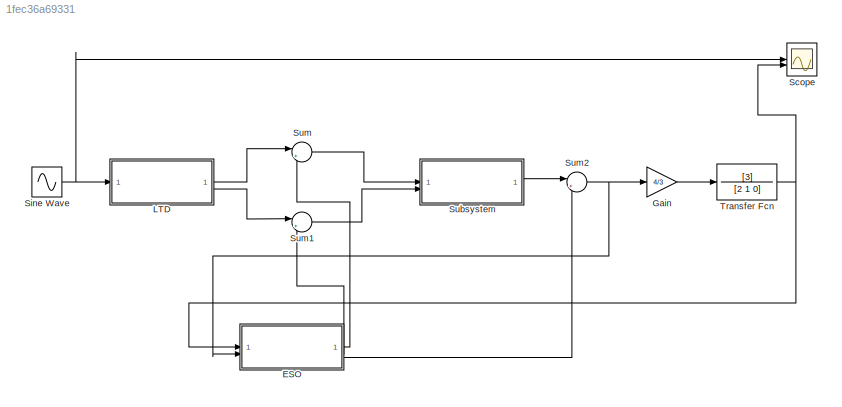
MODEL slx_1fec36a69331
KIND model
CONFIG AbsTol = auto
CONFIG EnableMultiTasking = off
CONFIG FixedStep = auto
CONFIG MaxStep = auto
CONFIG MinStep = auto
CONFIG RelTol = 1e-3
CONFIG SampleTimeConstraint = Unconstrained
CONFIG SolverName = VariableStepAuto
CONFIG StartTime = 0.0
CONFIG StopTime = 30
WORKSPACE source: mxarray member
WORKSPACE HIGH: Simulink.Parameter (value not decoded)
WORKSPACE LOW: Simulink.Parameter (value not decoded)
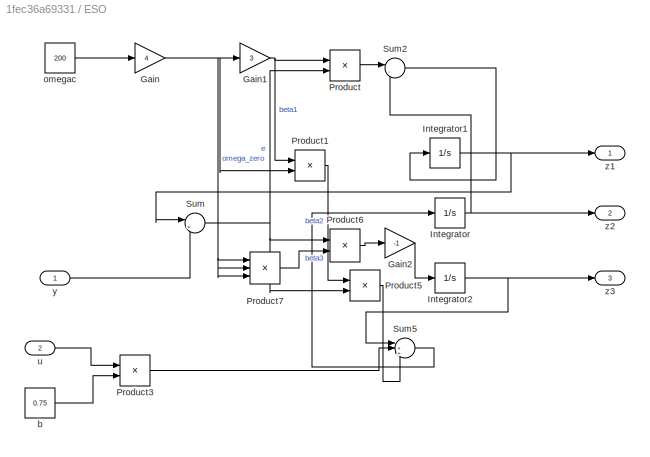
BLOCK [SubSystem] ESO
BLOCK [Gain] ESO/Gain
  Gain = 4
BLOCK [Gain] ESO/Gain1
  Gain = 3
BLOCK [Gain] ESO/Gain2
  Gain = -1
BLOCK [Integrator] ESO/Integrator
BLOCK [Integrator] ESO/Integrator1
BLOCK [Integrator] ESO/Integrator2
BLOCK [Product] ESO/Product
BLOCK [Product] ESO/Product1
BLOCK [Product] ESO/Product3
BLOCK [Product] ESO/Product5
BLOCK [Product] ESO/Product6
BLOCK [Product] ESO/Product7
  Inputs = 3
BLOCK [Sum] ESO/Sum
  Inputs = |+-
BLOCK [Sum] ESO/Sum2
  Inputs = |-+
BLOCK [Sum] ESO/Sum5
  Inputs = |++-
BLOCK [Constant] ESO/b
  Value = 0.75
BLOCK [Constant] ESO/omegac
  Value = 200
BLOCK [Inport] ESO/u
  Port = 2
BLOCK [Inport] ESO/y
BLOCK [Outport] ESO/z1
BLOCK [Outport] ESO/z2
  Port = 2
BLOCK [Outport] ESO/z3
  Port = 3
BLOCK [Gain] Gain
  Gain = 4/3
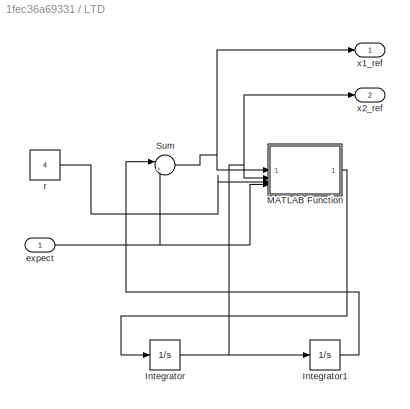
BLOCK [SubSystem] LTD
BLOCK [Integrator] LTD/Integrator
BLOCK [Integrator] LTD/Integrator1
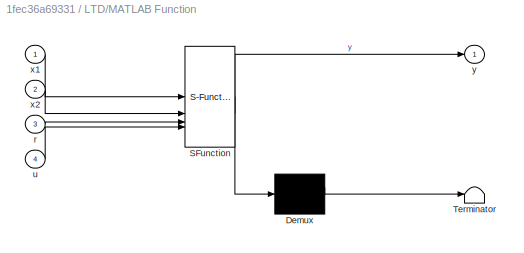
BLOCK [SubSystem] LTD/MATLAB Function
  ErrorFcn = Stateflow.Translate.translate
  LibrarySourceBlock = simulink/User-Defined\nFunctions/MATLAB Function
  PermitHierarchicalResolution = ExplicitOnly
  SFBlockType = MATLAB Function
  TreatAsAtomicUnit = on
BLOCK [Demux] LTD/MATLAB Function/ Demux 
  Outputs = 1
BLOCK [S-Function] LTD/MATLAB Function/ SFunction 
  EnableBusSupport = on
  FunctionName = sf_sfun
  PortCounts = [4 2]
  SFcnIsStateOwnerBlock = off
  SFunctionDeploymentMode = off
  Tag = Stateflow S-Function 2
BLOCK [Terminator] LTD/MATLAB Function/ Terminator 
BLOCK [Inport] LTD/MATLAB Function/r
  Port = 3
BLOCK [Inport] LTD/MATLAB Function/u
  Port = 4
BLOCK [Inport] LTD/MATLAB Function/x1
BLOCK [Inport] LTD/MATLAB Function/x2
  Port = 2
BLOCK [Outport] LTD/MATLAB Function/y
BLOCK [Sum] LTD/Sum
  Inputs = |+-
BLOCK [Inport] LTD/expect
BLOCK [Constant] LTD/r
  Value = 4
BLOCK [Outport] LTD/x1_ref
BLOCK [Outport] LTD/x2_ref
  Port = 2
BLOCK [Scope] Scope
  Floating = off
  NumInputPorts = 2
  ScopeSpecificationString = Simulink.scopes.TimeScopeBlockCfg('CurrentConfiguration', extmgr.ConfigurationSet(extmgr.Configuration('Core','General UI',true),extmgr.Configuration('Core','Source UI',true),extmgr.Configuration('Sources','WiredSimulink',true),extmgr.Configuration('Visuals','Time Domain',true,'SerializedDisplays',{struct('MinYLimReal','-1.54092','MaxYLimReal','1.53769','YLabelReal','','MinYLimMag','0.00000','MaxY...<+1425ch>
BLOCK [Sin] Sine Wave
  SampleTime = 0
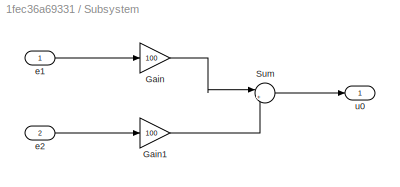
BLOCK [SubSystem] Subsystem
BLOCK [Gain] Subsystem/Gain
  Gain = 100
BLOCK [Gain] Subsystem/Gain1
  Gain = 100
BLOCK [Sum] Subsystem/Sum
  Inputs = |++
BLOCK [Inport] Subsystem/e1
BLOCK [Inport] Subsystem/e2
  Port = 2
BLOCK [Outport] Subsystem/u0
BLOCK [Sum] Sum
  Inputs = |+-
BLOCK [Sum] Sum1
  Inputs = |+-
BLOCK [Sum] Sum2
  Inputs = |+-
BLOCK [TransferFcn] Transfer Fcn
  Denominator = [2 1 0]
  Numerator = [3]
NET ESO/Gain1:1 -> ESO/Product1:1, ESO/Product:1
LINE ESO/Gain2:1 -> ESO/Integrator2:1
NET ESO/Gain:1 -> ESO/Gain1:1, ESO/Product1:2, ESO/Product7:1, ESO/Product7:2, ESO/Product7:3
NET ESO/Integrator1:1 -> ESO/Sum:1, ESO/z1:1
NET ESO/Integrator2:1 -> ESO/Sum5:1, ESO/z3:1
NET ESO/Integrator:1 -> ESO/Sum2:2, ESO/z2:1
LINE ESO/Product1:1 -> ESO/Product5:1
LINE ESO/Product3:1 -> ESO/Sum5:2
LINE ESO/Product5:1 -> ESO/Sum5:3
LINE ESO/Product6:1 -> ESO/Gain2:1
LINE ESO/Product7:1 -> ESO/Product6:2
LINE ESO/Product:1 -> ESO/Sum2:1
LINE ESO/Sum2:1 -> ESO/Integrator1:1
LINE ESO/Sum5:1 -> ESO/Integrator:1
NET ESO/Sum:1 -> ESO/Product5:2, ESO/Product6:1, ESO/Product:2
LINE ESO/b:1 -> ESO/Product3:2
LINE ESO/omegac:1 -> ESO/Gain:1
LINE ESO/u:1 -> ESO/Product3:1
LINE ESO/y:1 -> ESO/Sum:2
LINE ESO:1 -> Sum:2
LINE ESO:2 -> Sum1:2
LINE ESO:3 -> Sum2:2
LINE Gain:1 -> Transfer Fcn:1
LINE LTD/Integrator1:1 -> LTD/Sum:1
NET LTD/Integrator:1 -> LTD/Integrator1:1, LTD/MATLAB Function:2, LTD/x2_ref:1
LINE LTD/MATLAB Function:1 -> LTD/Integrator:1
NET LTD/Sum:1 -> LTD/MATLAB Function:1, LTD/x1_ref:1
NET LTD/expect:1 -> LTD/MATLAB Function:4, LTD/Sum:2
LINE LTD/r:1 -> LTD/MATLAB Function:3
LINE LTD:1 -> Sum:1
LINE LTD:2 -> Sum1:1
NET Sine Wave:1 -> LTD:1, Scope:1
LINE Subsystem/Gain1:1 -> Subsystem/Sum:2
LINE Subsystem/Gain:1 -> Subsystem/Sum:1
LINE Subsystem/Sum:1 -> Subsystem/u0:1
LINE Subsystem/e1:1 -> Subsystem/Gain:1
LINE Subsystem/e2:1 -> Subsystem/Gain1:1
LINE Subsystem:1 -> Sum2:1
LINE Sum1:1 -> Subsystem:2
NET Sum2:1 -> ESO:2, Gain:1
LINE Sum:1 -> Subsystem:1
NET Transfer Fcn:1 -> ESO:1, Scope:2
note: NET lines group one-source signal fan-out (src -> all destinations, sorted); 1:1 wires keep LINE
CHART LTD/MATLAB Function states=1 transitions=1
  STATE_LABEL 'eML_blk_kernel()'
  STATE_LABEL 'SCRIPT:\nfunction y = fcn(x1, x2, r, u)\n\ny = -r*r*x1-2*r*x2+r*r*u;\n'
CHART  states=0 transitions=0
